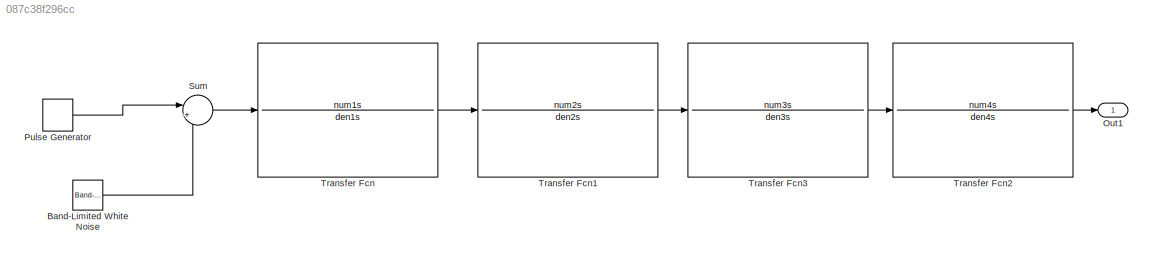
MODEL slx_087c38f296cc
KIND model
CONFIG AbsTol = auto
CONFIG FixedStep = auto
CONFIG MaxStep = auto
CONFIG MinStep = auto
CONFIG PreLoadFcn = System.m
CONFIG RelTol = 1e-3
CONFIG SampleTimeConstraint = Unconstrained
CONFIG Solver = VariableStepAuto
CONFIG SolverMode = SingleTasking
CONFIG SolverName = VariableStepAuto
CONFIG StartTime = 0.0
CONFIG StopTime = 10.0
WORKSPACE source: external: MATLAB File  (data not in archive)
BLOCK [Reference] Band-Limited White Noise  REF=simulink/Sources/Band-Limited
White Noise
  Ports = [0, 1]
  SourceBlock = simulink/Sources/Band-Limited\nWhite Noise
  SourceType = Band-Limited White Noise.
BLOCK [Outport] Out1
  IconDisplay = Port number
BLOCK [DiscretePulseGenerator] Pulse Generator
  Amplitude = 3.3
  Period = 0.01
  Ports = [0, 1]
  PulseType = Time based
  PulseWidth = 50
BLOCK [Sum] Sum
  IconShape = round
  InputSameDT = off
  Inputs = |++
  OutDataTypeStr = Inherit: Inherit via internal rule
  Ports = [2, 1]
  SaturateOnIntegerOverflow = off
BLOCK [TransferFcn] Transfer Fcn
  Denominator = den1s
  Numerator = num1s
BLOCK [TransferFcn] Transfer Fcn1
  Denominator = den2s
  Numerator = num2s
BLOCK [TransferFcn] Transfer Fcn2
  Denominator = den4s
  Numerator = num4s
BLOCK [TransferFcn] Transfer Fcn3
  Denominator = den3s
  Numerator = num3s
LINE Band-Limited White Noise:1 -> Sum:2
LINE Pulse Generator:1 -> Sum:1
LINE Sum:1 -> Transfer Fcn:1
LINE Transfer Fcn1:1 -> Transfer Fcn3:1
LINE Transfer Fcn2:1 -> Out1:1
LINE Transfer Fcn3:1 -> Transfer Fcn2:1
LINE Transfer Fcn:1 -> Transfer Fcn1:1
